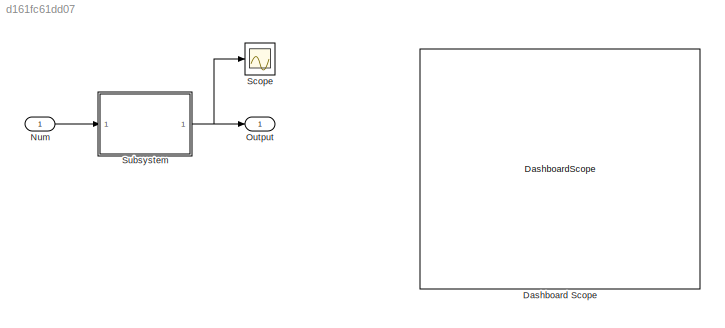
MODEL slx_d161fc61dd07
KIND model
CONFIG AbsTol = auto
CONFIG EnableMultiTasking = off
CONFIG FixedStep = auto
CONFIG MaxStep = auto
CONFIG MinStep = auto
CONFIG RelTol = 1e-3
CONFIG SampleTimeConstraint = Unconstrained
CONFIG SolverName = VariableStepAuto
CONFIG StartTime = 0.0
CONFIG StopTime = 10.0
BLOCK [DashboardScope] Dashboard Scope
  Ymax = 5
  Ymin = 0
BLOCK [Inport] Num
BLOCK [Outport] Output
BLOCK [Scope] Scope
  Floating = off
  NumInputPorts = 1
  Ports = [1]
  ScopeSpecificationString = Simulink.scopes.TimeScopeBlockCfg('CurrentConfiguration', extmgr.ConfigurationSet(extmgr.Configuration('Core','General UI',true),extmgr.Configuration('Core','Source UI',true),extmgr.Configuration('Sources','WiredSimulink',true),extmgr.Configuration('Visuals','Time Domain',true,'SerializedDisplays',{struct('MinYLimReal','-0.625','MaxYLimReal','5.625','YLabelReal','','MinYLimMag','0.00000','MaxYLimM...<+1317ch>
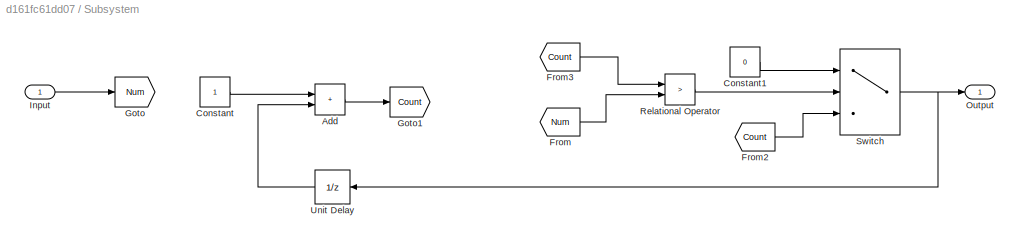
BLOCK [SubSystem] Subsystem
  Ports = [1, 1]
  RequestExecContextInheritance = off
BLOCK [Sum] Subsystem/Add
  IconShape = rectangular
  Ports = [2, 1]
BLOCK [Constant] Subsystem/Constant
BLOCK [Constant] Subsystem/Constant1
  Value = 0
BLOCK [From] Subsystem/From
  GotoTag = Num
BLOCK [From] Subsystem/From2
  GotoTag = Count
BLOCK [From] Subsystem/From3
  GotoTag = Count
BLOCK [Goto] Subsystem/Goto
  GotoTag = Num
BLOCK [Goto] Subsystem/Goto1
  GotoTag = Count
BLOCK [Inport] Subsystem/Input
BLOCK [Outport] Subsystem/Output
BLOCK [RelationalOperator] Subsystem/Relational Operator
  InputSameDT = off
  Operator = >
  OutDataTypeStr = boolean
  Ports = [2, 1]
  RndMeth = Simplest
BLOCK [Switch] Subsystem/Switch
  Criteria = u2 > Threshold
  InputSameDT = off
  SaturateOnIntegerOverflow = off
BLOCK [UnitDelay] Subsystem/Unit Delay
  HasFrameUpgradeWarning = on
  InitialCondition = -1
  SampleTime = -1
LINE Num:1 -> Subsystem:1
LINE Subsystem/Add:1 -> Subsystem/Goto1:1
LINE Subsystem/Constant1:1 -> Subsystem/Switch:1
LINE Subsystem/Constant:1 -> Subsystem/Add:1
LINE Subsystem/From2:1 -> Subsystem/Switch:3
LINE Subsystem/From3:1 -> Subsystem/Relational Operator:1
LINE Subsystem/From:1 -> Subsystem/Relational Operator:2
LINE Subsystem/Input:1 -> Subsystem/Goto:1
LINE Subsystem/Relational Operator:1 -> Subsystem/Switch:2
NET Subsystem/Switch:1 -> Subsystem/Output:1, Subsystem/Unit Delay:1
LINE Subsystem/Unit Delay:1 -> Subsystem/Add:2
NET Subsystem:1 -> Output:1, Scope:1
note: NET lines group one-source signal fan-out (src -> all destinations, sorted); 1:1 wires keep LINE
